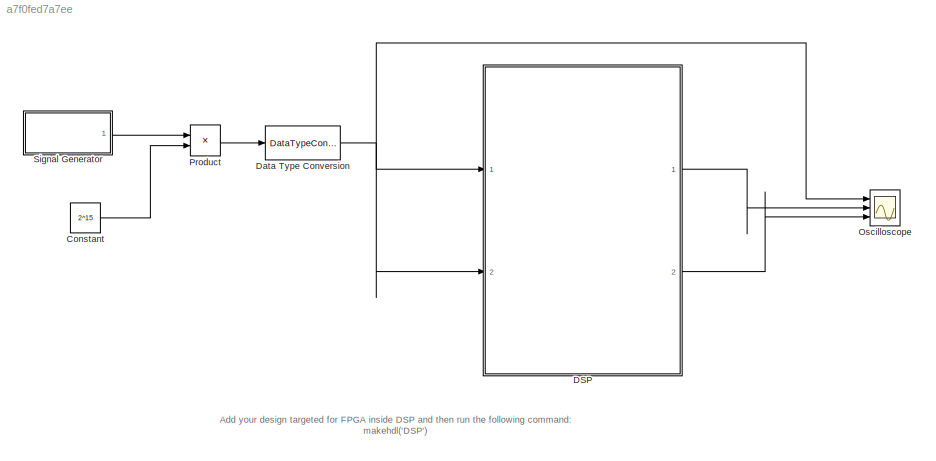
MODEL slx_a7f0fed7a7ee
KIND model
CONFIG AbsTol = auto
CONFIG EnableMultiTasking = off
CONFIG FixedStep = 1/312.5e6
CONFIG MaxStep = auto
CONFIG MinStep = auto
CONFIG RelTol = 1e-3
CONFIG SampleTimeConstraint = Unconstrained
CONFIG SolverName = FixedStepDiscrete
CONFIG StartTime = 0.0
CONFIG StopTime = 0.001
BLOCK [Constant] Constant
  Value = 2^15
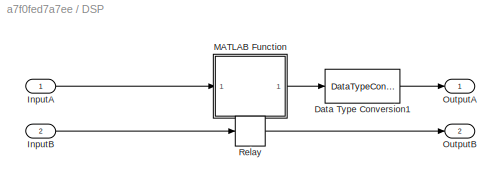
BLOCK [SubSystem] DSP
  Ports = [2, 2]
  RequestExecContextInheritance = off
BLOCK [DataTypeConversion] DSP/Data Type Conversion1
  OutDataTypeStr = fixdt(1,16,0)
  RndMeth = Floor
  SaturateOnIntegerOverflow = off
BLOCK [Inport] DSP/InputA
  OutDataTypeStr = fixdt(1,16,0)
BLOCK [Inport] DSP/InputB
  OutDataTypeStr = fixdt(1,16,0)
  Port = 2
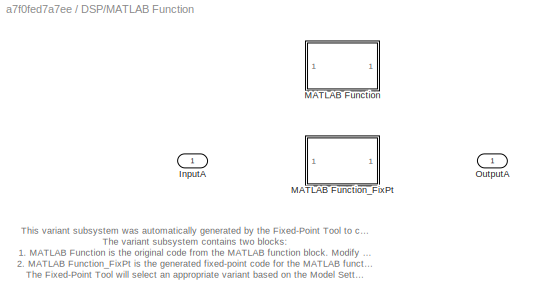
BLOCK [SubSystem] DSP/MATLAB Function
  LabelModeActiveChoice = (default)
  Ports = [1, 1]
  RequestExecContextInheritance = off
  TreatAsAtomicUnit = on
  Variant = on
  VariantControl = Choice
  VariantControlMode = label
BLOCK [Inport] DSP/MATLAB Function/InputA
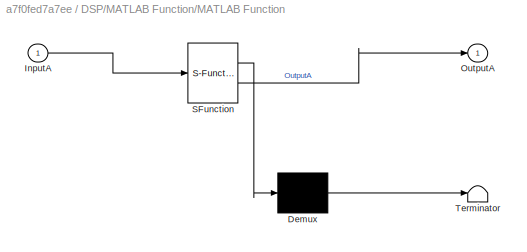
BLOCK [SubSystem] DSP/MATLAB Function/MATLAB Function
  ErrorFcn = Stateflow.Translate.translate
  PermitHierarchicalResolution = ExplicitOnly
  Ports = [1, 1]
  RequestExecContextInheritance = off
  SFBlockType = MATLAB Function
  TreatAsAtomicUnit = on
  VariantControl = false()
BLOCK [Demux] DSP/MATLAB Function/MATLAB Function/ Demux 
  Outputs = 1
  Ports = [1, 1]
BLOCK [S-Function] DSP/MATLAB Function/MATLAB Function/ SFunction 
  EnableBusSupport = on
  FunctionName = sf_sfun
  PortCounts = [1 2]
  Ports = [1, 2]
  SFcnIsStateOwnerBlock = off
  SFunctionDeploymentMode = off
  Tag = Stateflow S-Function 2
BLOCK [Terminator] DSP/MATLAB Function/MATLAB Function/ Terminator 
BLOCK [Inport] DSP/MATLAB Function/MATLAB Function/InputA
BLOCK [Outport] DSP/MATLAB Function/MATLAB Function/OutputA
  VectorParamsAs1DForOutWhenUnconnected = off
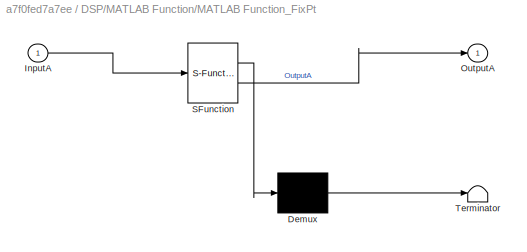
BLOCK [SubSystem] DSP/MATLAB Function/MATLAB Function_FixPt
  ErrorFcn = Stateflow.Translate.translate
  Permissions = ReadOnly
  PermitHierarchicalResolution = ExplicitOnly
  Ports = [1, 1]
  RequestExecContextInheritance = off
  SFBlockType = MATLAB Function
  TreatAsAtomicUnit = on
  VariantControl = (default)
BLOCK [Demux] DSP/MATLAB Function/MATLAB Function_FixPt/ Demux 
  Outputs = 1
  Ports = [1, 1]
BLOCK [S-Function] DSP/MATLAB Function/MATLAB Function_FixPt/ SFunction 
  EnableBusSupport = on
  FunctionName = sf_sfun
  PortCounts = [1 2]
  Ports = [1, 2]
  SFcnIsStateOwnerBlock = off
  SFunctionDeploymentMode = off
  Tag = Stateflow S-Function 1
BLOCK [Terminator] DSP/MATLAB Function/MATLAB Function_FixPt/ Terminator 
BLOCK [Inport] DSP/MATLAB Function/MATLAB Function_FixPt/InputA
BLOCK [Outport] DSP/MATLAB Function/MATLAB Function_FixPt/OutputA
  VectorParamsAs1DForOutWhenUnconnected = off
BLOCK [Outport] DSP/MATLAB Function/OutputA
BLOCK [Outport] DSP/OutputA
  OutDataTypeStr = fixdt(1,16,0)
  VectorParamsAs1DForOutWhenUnconnected = off
BLOCK [Outport] DSP/OutputB
  OutDataTypeStr = fixdt(1,16,0)
  Port = 2
  VectorParamsAs1DForOutWhenUnconnected = off
BLOCK [Relay] DSP/Relay
  OffSwitchValue = -floor(2^15/10)
  OnOutputValue = 2^15-1
  OnSwitchValue = floor(2^15/10)
  OutDataTypeStr = fixdt(1,16,0)
BLOCK [DataTypeConversion] Data Type Conversion
  OutDataTypeStr = fixdt(1,16,0)
  RndMeth = Floor
  SaturateOnIntegerOverflow = off
BLOCK [Scope] Oscilloscope
  Floating = off
  NumInputPorts = 3
  Ports = [3]
  ScopeSpecificationString = Simulink.scopes.TimeScopeBlockCfg('CurrentConfiguration', extmgr.ConfigurationSet(extmgr.Configuration('Core','General UI',true),extmgr.Configuration('Core','Source UI',true),extmgr.Configuration('Sources','WiredSimulink',true,'DataLoggingSaveFormat','Array','DataLoggingLimitDataPoints',true,'DataLoggingDecimation','1'),extmgr.Configuration('Visuals','Time Domain',true,'SerializedDisplays',{struct...<+1824ch>
BLOCK [Product] Product
  Ports = [2, 1]
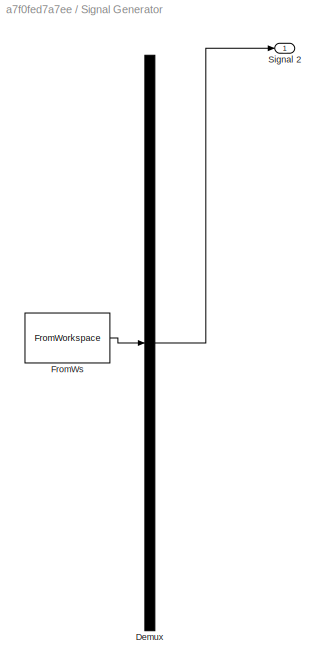
BLOCK [SubSystem] Signal Generator
  ClipboardFcn = sigbuilder_block('clipboard');
  CloseFcn = sigbuilder_block('close');
  ContinueFcn = sigbuilder_block('continue');
  CopyFcn = sigbuilder_block('copy');
  DeleteFcn = sigbuilder_block('delete');
  LoadFcn = sigbuilder_block('load');
  MaskHideContents = on
  ModelCloseFcn = sigbuilder_block('modelClose');
  NameChangeFcn = sigbuilder_block('namechange');
  OpenFcn = sigbuilder_block('open',[437.25 199.5 550.5 399.75 ]);
  PauseFcn = sigbuilder_block('pause');
  Ports = [0, 1]
  PreSaveFcn = sigbuilder_block('preSave');
  RequestExecContextInheritance = off
  StartFcn = sigbuilder_block('start');
  StopFcn = sigbuilder_block('stop');
  Tag = STV Subsys
BLOCK [Demux] Signal Generator/Demux
  DisplayOption = none
  Outputs = 1
  Ports = [1, 1]
  Tag = STV Demux
BLOCK [FromWorkspace] Signal Generator/FromWs
  Tag = STV FromWs
  VariableName = tuvar
BLOCK [Outport] Signal Generator/Signal 2
  Tag = STV Outport
ANNOTATION (root): Add your design targeted for FPGA inside DSP and then run the following command: makehdl('DSP')
ANNOTATION DSP/MATLAB Function: This variant subsystem was automatically generated by the Fixed-Point Tool to convert a MATLAB function block to fixed-point. The variant subsystem contains two blocks: 1. MATLAB Function is the original code from the MATLAB function block. Modify this block to update your code or resolve errors. 2. MATLAB Function_FixPt is the generated fixed-point code for the MATLAB function block. Any modifica...<+162ch>
LINE Constant:1 -> Product:2
LINE DSP/Data Type Conversion1:1 -> DSP/OutputA:1
LINE DSP/InputA:1 -> DSP/MATLAB Function:1
LINE DSP/InputB:1 -> DSP/Relay:1
LINE DSP/MATLAB Function:1 -> DSP/Data Type Conversion1:1
LINE DSP/Relay:1 -> DSP/OutputB:1
LINE DSP:1 -> Oscilloscope:2
LINE DSP:2 -> Oscilloscope:3
NET Data Type Conversion:1 -> DSP:1, DSP:2, Oscilloscope:1
LINE Product:1 -> Data Type Conversion:1
LINE Signal Generator:1 -> Product:1
note: NET lines group one-source signal fan-out (src -> all destinations, sorted); 1:1 wires keep LINE
CHART DSP/MATLAB Function/MATLAB Function states=1 transitions=1
  STATE_LABEL 'eML_blk_kernel()'
  STATE_LABEL 'SCRIPT:\nfunction OutputA = Schimitt_Trigger(InputA)\n%#codegen\npersistent out0; %Retains variable value between function calls.\nif isempty(out0) %Initialize the value for the first call.\n    out0 = 0;\nend\n\nupperThreshold = floor(2^15/10); %Set the upper threshold to 1/10 of the full positive range.\nlowerThreshold = -floor(2^15/10); %Set the lower threshold to 1/10 of the full negative range.\n \nif I...<+225ch>'
CHART DSP/MATLAB Function/MATLAB Function_FixPt states=1 transitions=1
  STATE_LABEL 'eML_blk_kernel()'
  STATE_LABEL 'SCRIPT:\n%auto-generated\nfunction OutputA = Schimitt_Trigger_fixpt(InputA)\n%#codegen\nfm = get_fimath();\nInputA = fi(InputA, 1, 16, 1, fm);\n\npersistent out0; %Retains variable value between function calls.\nif isempty(out0) %Initialize the value for the first call.\n    out0 = fi(0, 0, 16, 0, fm);\nend\n\nupperThreshold = fi(floor(2^15/10), 0, 16, 4, fm); %Set the upper threshold to 1/10 of the full posi...<+641ch>'
CHART  states=0 transitions=0
CHART  states=0 transitions=0
